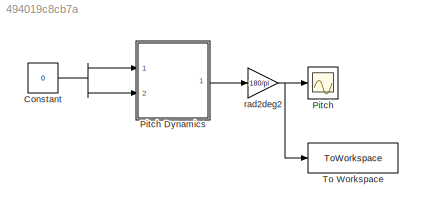
MODEL slx_494019c8cb7a
KIND model
CONFIG AbsTol = auto
CONFIG EnableMultiTasking = on
CONFIG FixedStep = 0.01
CONFIG MaxStep = auto
CONFIG MinStep = auto
CONFIG RelTol = 1e-3
CONFIG SampleTimeConstraint = Unconstrained
CONFIG Solver = ode1
CONFIG SolverName = ode1
CONFIG StartTime = 0.00
CONFIG StopTime = 10.00
BLOCK [Constant] Constant
  Value = 0
BLOCK [Scope] Pitch
  Floating = off
  NumInputPorts = 1
  Ports = [1]
  ScopeSpecificationString = Simulink.scopes.TimeScopeBlockCfg('CurrentConfiguration', extmgr.ConfigurationSet(extmgr.Configuration('Core','General UI',true),extmgr.Configuration('Core','Source UI',true),extmgr.Configuration('Sources','WiredSimulink',true,'DataLogging',true,'DataLoggingVariableName','pitch','DataLoggingSaveFormat','StructureWithTime','DataLoggingDecimation','1','DataLoggingDecimateData',true),extmgr.Configura...<+1686ch>
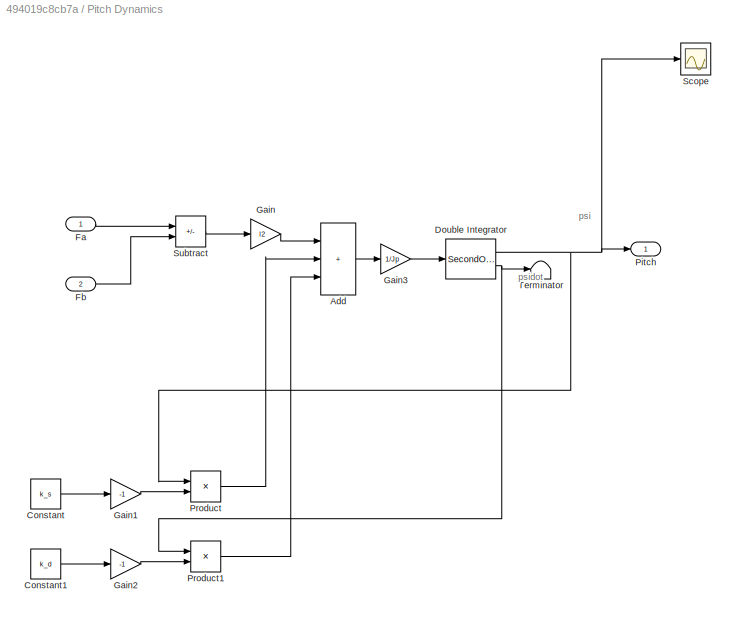
BLOCK [SubSystem] Pitch Dynamics
  Ports = [2, 1]
  RequestExecContextInheritance = off
BLOCK [Sum] Pitch Dynamics/Add
  IconShape = rectangular
  Inputs = +++
  Ports = [3, 1]
BLOCK [Constant] Pitch Dynamics/Constant
  Value = k_s
BLOCK [Constant] Pitch Dynamics/Constant1
  Value = k_d
BLOCK [SecondOrderIntegrator] Pitch Dynamics/Double Integrator
  ICX = p_lim_u
  LimitX = on
  LowerLimitX = p_lim_l
  Ports = [1, 2]
  UpperLimitX = p_lim_u
BLOCK [Inport] Pitch Dynamics/Fa
BLOCK [Inport] Pitch Dynamics/Fb
  Port = 2
BLOCK [Gain] Pitch Dynamics/Gain
  Gain = l2
BLOCK [Gain] Pitch Dynamics/Gain1
  Gain = -1
BLOCK [Gain] Pitch Dynamics/Gain2
  Gain = -1
BLOCK [Gain] Pitch Dynamics/Gain3
  Gain = 1/Jp
BLOCK [Outport] Pitch Dynamics/Pitch
BLOCK [Product] Pitch Dynamics/Product
  Ports = [2, 1]
BLOCK [Product] Pitch Dynamics/Product1
  Ports = [2, 1]
BLOCK [Scope] Pitch Dynamics/Scope
  Floating = off
  NumInputPorts = 1
  Ports = [1]
  ScopeSpecificationString = Simulink.scopes.TimeScopeBlockCfg('CurrentConfiguration', extmgr.ConfigurationSet(extmgr.Configuration('Core','General UI',true),extmgr.Configuration('Core','Source UI',true),extmgr.Configuration('Sources','WiredSimulink',true,'DataLoggingVariableName','ScopeData1'),extmgr.Configuration('Visuals','Time Domain',true,'SerializedDisplays',{struct('MinYLimReal','-0.95656','MaxYLimReal','1.65769','YLab...<+1378ch>
BLOCK [Sum] Pitch Dynamics/Subtract
  IconShape = rectangular
  Inputs = +-
  Ports = [2, 1]
BLOCK [Terminator] Pitch Dynamics/Terminator
BLOCK [ToWorkspace] To Workspace
  FixptAsFi = on
  MaxDataPoints = inf
  Ports = [1]
  SampleTime = -1
  SaveFormat = Timeseries
  VariableName = pitchOutput
BLOCK [Gain] rad2deg2
  Gain = 180/pi
  OutDataTypeStr = Inherit: Same as input
  ParamDataTypeStr = Inherit: Same as input
  SaturateOnIntegerOverflow = on
ANNOTATION Pitch Dynamics: psi
ANNOTATION Pitch Dynamics: psidot
NET Constant:1 -> Pitch Dynamics:1, Pitch Dynamics:2
LINE Pitch Dynamics/Add:1 -> Pitch Dynamics/Gain3:1
LINE Pitch Dynamics/Constant1:1 -> Pitch Dynamics/Gain2:1
LINE Pitch Dynamics/Constant:1 -> Pitch Dynamics/Gain1:1
NET Pitch Dynamics/Double Integrator:1 -> Pitch Dynamics/Pitch:1, Pitch Dynamics/Product:1, Pitch Dynamics/Scope:1
NET Pitch Dynamics/Double Integrator:2 -> Pitch Dynamics/Product1:1, Pitch Dynamics/Terminator:1
LINE Pitch Dynamics/Fa:1 -> Pitch Dynamics/Subtract:1
LINE Pitch Dynamics/Fb:1 -> Pitch Dynamics/Subtract:2
LINE Pitch Dynamics/Gain1:1 -> Pitch Dynamics/Product:2
LINE Pitch Dynamics/Gain2:1 -> Pitch Dynamics/Product1:2
LINE Pitch Dynamics/Gain3:1 -> Pitch Dynamics/Double Integrator:1
LINE Pitch Dynamics/Gain:1 -> Pitch Dynamics/Add:1
LINE Pitch Dynamics/Product1:1 -> Pitch Dynamics/Add:3
LINE Pitch Dynamics/Product:1 -> Pitch Dynamics/Add:2
LINE Pitch Dynamics/Subtract:1 -> Pitch Dynamics/Gain:1
LINE Pitch Dynamics:1 -> rad2deg2:1
NET rad2deg2:1 -> Pitch:1, To Workspace:1
note: NET lines group one-source signal fan-out (src -> all destinations, sorted); 1:1 wires keep LINE
